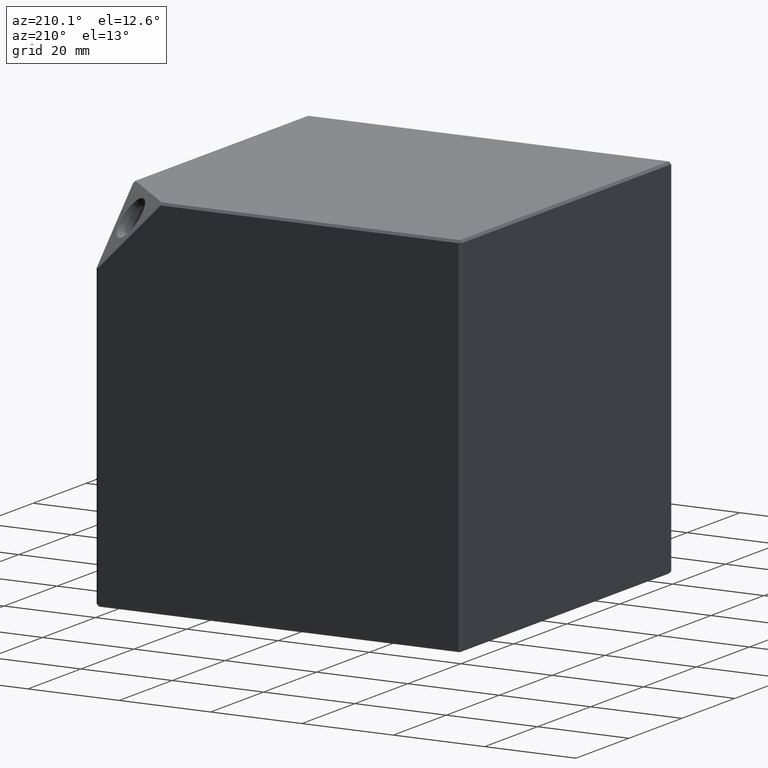
[diagram: clean part render]
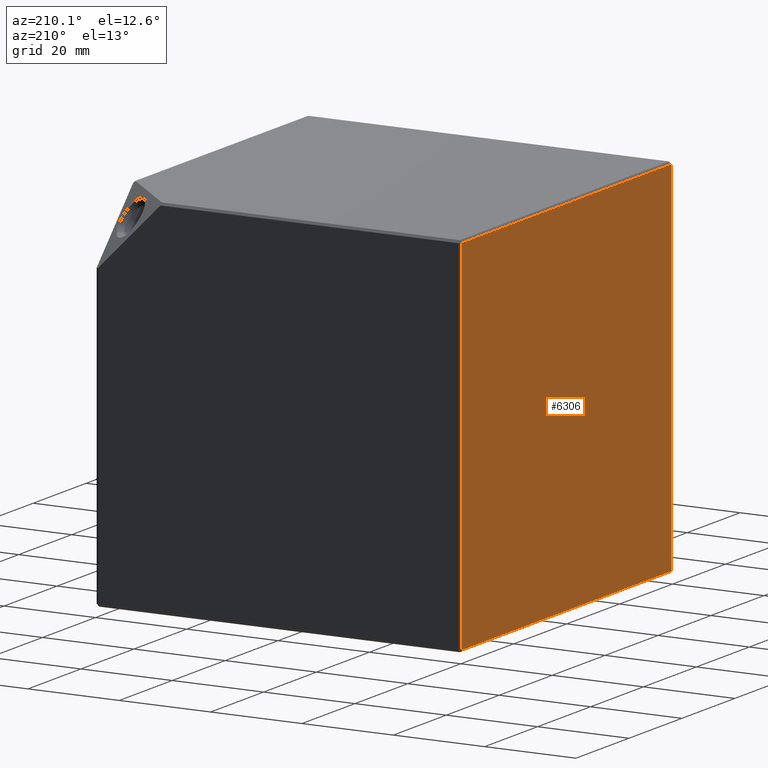
[diagram: same view with one face highlighted and labeled with its STEP entity id]
A machine part, auxiliary view. The second image highlights one B-rep face of the part: STEP entity #6306.
In plain terms, the highlighted planar face has unit normal (1, 0, -0).
Its self-contained STEP definition (entity closure, byte-faithful):
#620 = EDGE_LOOP ( 'NONE', ( #6074, #4884, #6211, #5572 ) ) ;
#659 = DIRECTION ( 'NONE',  ( -0.0000000000000000000, 0.0000000000000000000, -1.000000000000000000 ) ) ;
#1007 = CARTESIAN_POINT ( 'NONE',  ( -40.00000000000000700, 39.99999999999999300, -39.50000000000002800 ) ) ;
#1100 = DIRECTION ( 'NONE',  ( 1.000000000000000000, 8.673617379884034200E-017, -0.0000000000000000000 ) ) ;
#1230 = LINE ( 'NONE', #6215, #13580 ) ;
#1463 = VERTEX_POINT ( 'NONE', #5244 ) ;
#1698 = CARTESIAN_POINT ( 'NONE',  ( -40.00000000000000000, -39.50000000000005000, 40.00000000000000000 ) ) ;
#2035 = LINE ( 'NONE', #1698, #13513 ) ;
#2377 = AXIS2_PLACEMENT_3D ( 'NONE', #12067, #1100, #11105 ) ;
#3004 = EDGE_CURVE ( 'NONE', #8549, #10261, #10696, .T. ) ;
#3395 = VECTOR ( 'NONE', #10972, 1000.000000000000000 ) ;
#4196 = EDGE_CURVE ( 'NONE', #1463, #14129, #11156, .T. ) ;
#4712 = EDGE_CURVE ( 'NONE', #14129, #8549, #1230, .T. ) ;
#4884 = ORIENTED_EDGE ( 'NONE', *, *, #10733, .T. ) ;
#5244 = CARTESIAN_POINT ( 'NONE',  ( -40.00000000000000000, -39.50000000000005000, 39.50000000000002800 ) ) ;
#5456 = CARTESIAN_POINT ( 'NONE',  ( -40.00000000000000700, 39.99999999999999300, 39.50000000000002800 ) ) ;
#5572 = ORIENTED_EDGE ( 'NONE', *, *, #4712, .T. ) ;
#6074 = ORIENTED_EDGE ( 'NONE', *, *, #3004, .T. ) ;
#6157 = DIRECTION ( 'NONE',  ( 0.0000000000000000000, 0.0000000000000000000, 1.000000000000000000 ) ) ;
#6211 = ORIENTED_EDGE ( 'NONE', *, *, #4196, .T. ) ;
#6215 = CARTESIAN_POINT ( 'NONE',  ( -40.00000000000000700, 39.50000000000002100, 40.00000000000000000 ) ) ;
#6306 = ADVANCED_FACE ( 'NONE', ( #11378 ), #13148, .F. ) ;
#7641 = CARTESIAN_POINT ( 'NONE',  ( -40.00000000000000700, 39.50000000000002100, -39.50000000000002800 ) ) ;
#8549 = VERTEX_POINT ( 'NONE', #7641 ) ;
#10261 = VERTEX_POINT ( 'NONE', #12086 ) ;
#10696 = LINE ( 'NONE', #1007, #3395 ) ;
#10733 = EDGE_CURVE ( 'NONE', #10261, #1463, #2035, .T. ) ;
#10972 = DIRECTION ( 'NONE',  ( 8.673617379884034200E-017, -1.000000000000000000, 0.0000000000000000000 ) ) ;
#11105 = DIRECTION ( 'NONE',  ( -8.673617379884034200E-017, 1.000000000000000000, 0.0000000000000000000 ) ) ;
#11156 = LINE ( 'NONE', #5456, #14269 ) ;
#11378 = FACE_OUTER_BOUND ( 'NONE', #620, .T. ) ;
#12067 = CARTESIAN_POINT ( 'NONE',  ( -40.00000000000000700, 39.99999999999999300, 40.00000000000000000 ) ) ;
#12086 = CARTESIAN_POINT ( 'NONE',  ( -40.00000000000000000, -39.50000000000005000, -39.50000000000002800 ) ) ;
#12181 = CARTESIAN_POINT ( 'NONE',  ( -40.00000000000000700, 39.50000000000002100, 39.50000000000002800 ) ) ;
#13148 = PLANE ( 'NONE',  #2377 ) ;
#13230 = DIRECTION ( 'NONE',  ( -8.673617379884034200E-017, 1.000000000000000000, 0.0000000000000000000 ) ) ;
#13513 = VECTOR ( 'NONE', #6157, 1000.000000000000000 ) ;
#13580 = VECTOR ( 'NONE', #659, 1000.000000000000000 ) ;
#14129 = VERTEX_POINT ( 'NONE', #12181 ) ;
#14269 = VECTOR ( 'NONE', #13230, 1000.000000000000000 ) ;